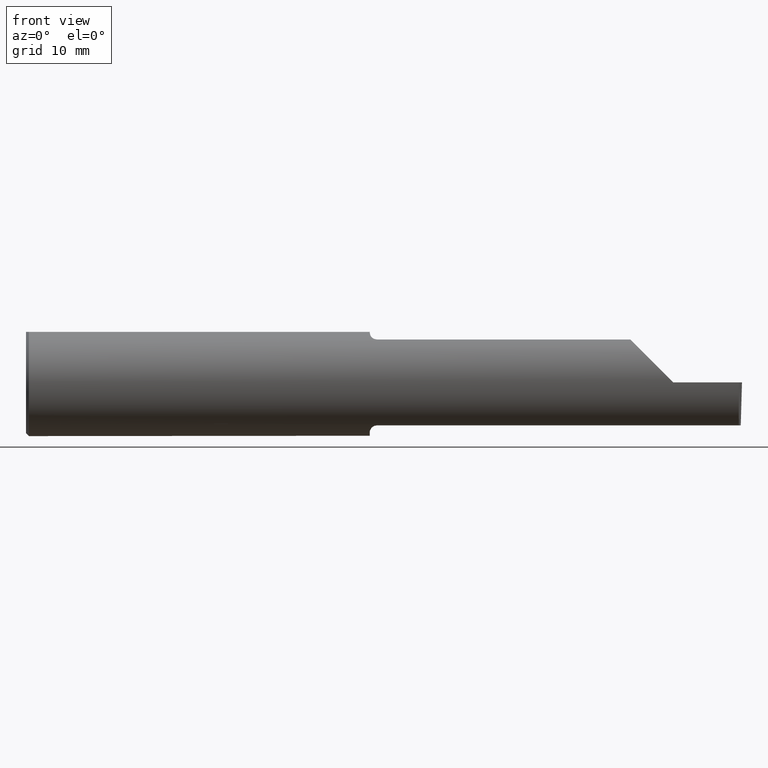
[diagram: clean part render]
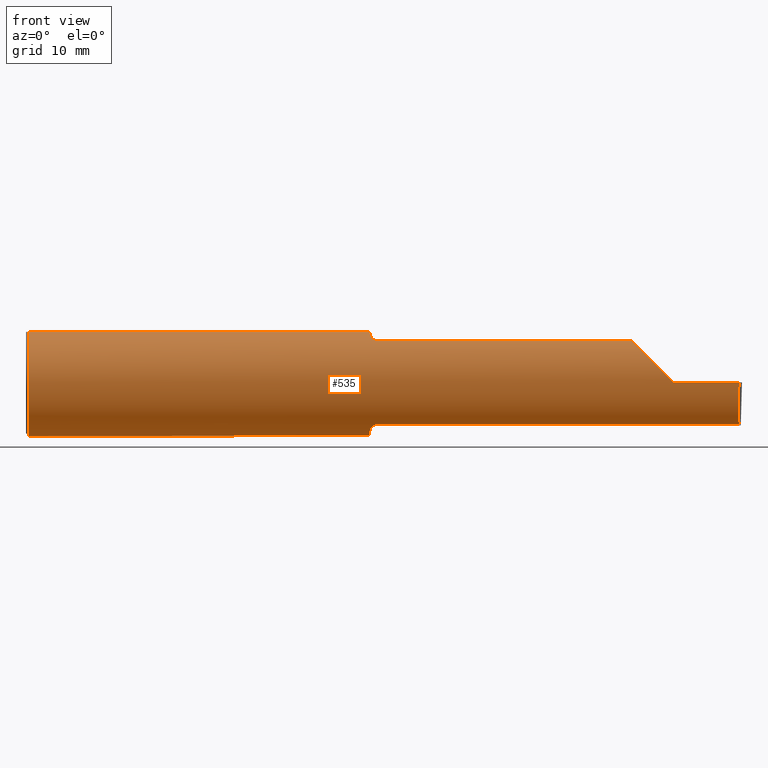
[diagram: same view with one face highlighted and labeled with its STEP entity id]
A machine part, front view. The second image highlights one B-rep face of the part: STEP entity #535.
In plain terms, the highlighted cylindrical surface (partial cylindrical patch) has radius 4.7587 mm, axis along (-1, -0, -0).
Its self-contained STEP definition (entity closure, byte-faithful):
#2 = CARTESIAN_POINT ( 'NONE',  ( 1.202945243422983479, -0.09312071749437436652, 0.1626553472577906001 ) ) ;
#5 = CARTESIAN_POINT ( 'NONE',  ( 1.200353553376444671, -0.07868116735658677030, 0.1701139256562800572 ) ) ;
#8 = CIRCLE ( 'NONE', #465, 0.1873499999999999888 ) ;
#13 = LINE ( 'NONE', #230, #568 ) ;
#14 = CARTESIAN_POINT ( 'NONE',  ( 1.199999999999999956, -0.06851976604679066440, 0.1743704796142198643 ) ) ;
#15 = EDGE_LOOP ( 'NONE', ( #556, #464, #670, #225, #193, #531, #587, #43, #585, #360, #419, #292, #318 ) ) ;
#30 = CARTESIAN_POINT ( 'NONE',  ( 0.01000000000000013205, -0.06325108694718235836, 0.1763499999999999235 ) ) ;
#33 = VERTEX_POINT ( 'NONE', #708 ) ;
#39 =( BOUNDED_CURVE ( )  B_SPLINE_CURVE ( 3, ( #683, #462, #347, #616 ),
 .UNSPECIFIED., .F., .F. ) 
 B_SPLINE_CURVE_WITH_KNOTS ( ( 4, 4 ),
 ( 4.712388980384688786, 5.606916381293134855 ),
 .UNSPECIFIED. ) 
 CURVE ( )  GEOMETRIC_REPRESENTATION_ITEM ( )  RATIONAL_B_SPLINE_CURVE ( ( 1.000000000000000000, 0.9344226172588805390, 0.9344226172588805390, 1.000000000000000000 ) ) 
 REPRESENTATION_ITEM ( '' )  );
#40 = VERTEX_POINT ( 'NONE', #216 ) ;
#43 = ORIENTED_EDGE ( 'NONE', *, *, #150, .F. ) ;
#54 = CARTESIAN_POINT ( 'NONE',  ( 1.219511795768554396, -0.1163687266324236608, -0.1468371510166787408 ) ) ;
#58 =( BOUNDED_CURVE ( )  B_SPLINE_CURVE ( 3, ( #106, #310, #370, #210 ),
 .UNSPECIFIED., .F., .T. ) 
 B_SPLINE_CURVE_WITH_KNOTS ( ( 4, 4 ),
 ( 5.852427379562172405, 6.746954780470620250 ),
 .UNSPECIFIED. ) 
 CURVE ( )  GEOMETRIC_REPRESENTATION_ITEM ( )  RATIONAL_B_SPLINE_CURVE ( ( 1.000000000000000000, 0.9344226172588802060, 0.9344226172588802060, 1.000000000000000000 ) ) 
 REPRESENTATION_ITEM ( '' )  );
#59 = VERTEX_POINT ( 'NONE', #76 ) ;
#63 = CARTESIAN_POINT ( 'NONE',  ( 2.489235021721937002, -0.1873499999999999888, 0.000000000000000000 ) ) ;
#64 = DIRECTION ( 'NONE',  ( 0.000000000000000000, 1.000000000000000000, 0.000000000000000000 ) ) ;
#67 = AXIS2_PLACEMENT_3D ( 'NONE', #169, #342, #165 ) ;
#72 = CARTESIAN_POINT ( 'NONE',  ( 1.199999999999999956, 0.000000000000000000, 0.000000000000000000 ) ) ;
#74 = EDGE_CURVE ( 'NONE', #421, #59, #39, .T. ) ;
#76 = CARTESIAN_POINT ( 'NONE',  ( 2.113883229301068312, -0.1172600179964009698, 0.1461167706989301152 ) ) ;
#86 = DIRECTION ( 'NONE',  ( 1.000000000000000000, 0.000000000000000000, 0.000000000000000000 ) ) ;
#96 = CARTESIAN_POINT ( 'NONE',  ( 1.202960551809340028, -0.09317341542745755101, -0.1626248379125195820 ) ) ;
#98 = CARTESIAN_POINT ( 'NONE',  ( 1.201843912362378308, -0.08846956905169099661, -0.1652353808078971809 ) ) ;
#103 = CARTESIAN_POINT ( 'NONE',  ( 1.199999999999999956, -0.07368234487347197215, -0.1723418180300747837 ) ) ;
#106 = CARTESIAN_POINT ( 'NONE',  ( 2.489130585478359858, -0.1172600179964006645, -0.1461167706989303094 ) ) ;
#114 = CARTESIAN_POINT ( 'NONE',  ( 0.01000000000000013205, 0.06325108694718235836, 0.1763499999999999235 ) ) ;
#121 = DIRECTION ( 'NONE',  ( -1.000000000000000000, -0.000000000000000000, -0.000000000000000000 ) ) ;
#138 = CARTESIAN_POINT ( 'NONE',  ( 1.199999999999999956, -0.06325108694718287183, 0.1763499999999999235 ) ) ;
#150 = EDGE_CURVE ( 'NONE', #416, #158, #677, .T. ) ;
#158 = VERTEX_POINT ( 'NONE', #138 ) ;
#159 = CARTESIAN_POINT ( 'NONE',  ( 1.213203859946834218, -0.1120371980050639676, -0.1501764597936558476 ) ) ;
#165 = DIRECTION ( 'NONE',  ( 0.000000000000000000, 0.000000000000000000, -1.000000000000000000 ) ) ;
#169 = CARTESIAN_POINT ( 'NONE',  ( 0.01000000000000013205, 0.000000000000000000, 0.000000000000000000 ) ) ;
#172 = DIRECTION ( 'NONE',  ( 1.000000000000000000, 7.267260269538567824E-17, 0.000000000000000000 ) ) ;
#187 = CARTESIAN_POINT ( 'NONE',  ( 0.000000000000000000, -0.06325108694718235836, 0.1763499999999999235 ) ) ;
#190 = CARTESIAN_POINT ( 'NONE',  ( 1.225000000000000089, -0.1172600179964008033, 0.1461167706989302262 ) ) ;
#193 = ORIENTED_EDGE ( 'NONE', *, *, #500, .F. ) ;
#200 = EDGE_CURVE ( 'NONE', #416, #623, #436, .T. ) ;
#203 = CARTESIAN_POINT ( 'NONE',  ( 1.208439486659307116, -0.1064616213911159653, -0.1542305641651500192 ) ) ;
#206 = AXIS2_PLACEMENT_3D ( 'NONE', #433, #288, #64 ) ;
#208 = DIRECTION ( 'NONE',  ( 0.000000000000000000, 0.000000000000000000, 1.000000000000000000 ) ) ;
#210 = CARTESIAN_POINT ( 'NONE',  ( 2.489235021721937002, -0.1873499999999999888, 0.000000000000000000 ) ) ;
#216 = CARTESIAN_POINT ( 'NONE',  ( 1.199999999999999956, -0.06851976604679066440, 0.1743704796142198643 ) ) ;
#217 = CARTESIAN_POINT ( 'NONE',  ( 1.208475602106622082, -0.1064978748893407601, 0.1542035505680382779 ) ) ;
#225 = ORIENTED_EDGE ( 'NONE', *, *, #74, .T. ) ;
#226 = EDGE_CURVE ( 'NONE', #158, #40, #8, .T. ) ;
#227 = CARTESIAN_POINT ( 'NONE',  ( 1.213163223656403167, -0.1119926267047278573, 0.1502091925606061362 ) ) ;
#230 = CARTESIAN_POINT ( 'NONE',  ( 0.000000000000000000, 0.06325108694718235836, 0.1763499999999999235 ) ) ;
#256 = LINE ( 'NONE', #635, #407 ) ;
#266 = EDGE_CURVE ( 'NONE', #623, #325, #329, .T. ) ;
#267 = FACE_OUTER_BOUND ( 'NONE', #15, .T. ) ;
#272 = EDGE_CURVE ( 'NONE', #430, #678, #293, .T. ) ;
#277 = B_SPLINE_CURVE_WITH_KNOTS ( 'NONE', 3,
 ( #14, #562, #5, #399, #2, #390, #217, #227, #387, #381, #554, #502 ),
 .UNSPECIFIED., .F., .F.,
 ( 4, 2, 2, 2, 2, 4 ),
 ( 4.423516731080811751E-05, 0.0004615475116586740113, 0.0008788598560065399119, 0.001296172200354405758, 0.001504828372528336025, 0.001713484544702266509 ),
 .UNSPECIFIED. ) ;
#285 = CARTESIAN_POINT ( 'NONE',  ( 0.01000000000000013205, 0.000000000000000000, 0.000000000000000000 ) ) ;
#288 = DIRECTION ( 'NONE',  ( 1.000000000000000000, 7.267260269538567824E-17, 0.000000000000000000 ) ) ;
#292 = ORIENTED_EDGE ( 'NONE', *, *, #272, .F. ) ;
#293 = CIRCLE ( 'NONE', #206, 0.1873499999999999888 ) ;
#295 = CARTESIAN_POINT ( 'NONE',  ( 1.199999999999999956, -0.06851976604679066440, -0.1743704796142198643 ) ) ;
#304 = LINE ( 'NONE', #411, #621 ) ;
#310 = CARTESIAN_POINT ( 'NONE',  ( 2.488188068920404561, -0.1623470442677541203, -0.1099340280425338823 ) ) ;
#312 = LINE ( 'NONE', #539, #522 ) ;
#315 = CARTESIAN_POINT ( 'NONE',  ( 0.000000000000000000, 0.000000000000000000, 0.000000000000000000 ) ) ;
#318 = ORIENTED_EDGE ( 'NONE', *, *, #524, .F. ) ;
#322 = EDGE_CURVE ( 'NONE', #40, #351, #277, .T. ) ;
#325 = VERTEX_POINT ( 'NONE', #114 ) ;
#329 = CIRCLE ( 'NONE', #67, 0.1873499999999999888 ) ;
#338 = CARTESIAN_POINT ( 'NONE',  ( 1.199999999999999956, 0.06325108694718235836, 0.1763499999999999235 ) ) ;
#342 = DIRECTION ( 'NONE',  ( 1.000000000000000000, 0.000000000000000000, 0.000000000000000000 ) ) ;
#347 = CARTESIAN_POINT ( 'NONE',  ( 2.150065971957465294, -0.1623470442677543146, 0.1099340280425335076 ) ) ;
#351 = VERTEX_POINT ( 'NONE', #190 ) ;
#360 = ORIENTED_EDGE ( 'NONE', *, *, #266, .T. ) ;
#363 = B_SPLINE_CURVE_WITH_KNOTS ( 'NONE', 3,
 ( #692, #706, #54, #532, #159, #203, #483, #96, #98, #376, #103, #431 ),
 .UNSPECIFIED., .F., .F.,
 ( 4, 2, 2, 2, 2, 4 ),
 ( 1.967976973692733563E-07, 0.0002120314145722265134, 0.0004238660314470837171, 0.0008475352651968004556, 0.001271204498946517302, 0.001694873732696233933 ),
 .UNSPECIFIED. ) ;
#366 = DIRECTION ( 'NONE',  ( -1.000000000000000000, -7.267260269538567824E-17, -0.000000000000000000 ) ) ;
#370 = CARTESIAN_POINT ( 'NONE',  ( 2.488225324098681579, -0.1873500000000000443, -0.05781030015605120864 ) ) ;
#371 = AXIS2_PLACEMENT_3D ( 'NONE', #315, #485, #208 ) ;
#376 = CARTESIAN_POINT ( 'NONE',  ( 1.200358271039144054, -0.07873626113568082951, -0.1700887912276896063 ) ) ;
#381 = CARTESIAN_POINT ( 'NONE',  ( 1.219481469043492528, -0.1163560528186167731, 0.1468472430636321713 ) ) ;
#387 = CARTESIAN_POINT ( 'NONE',  ( 1.215004157323697154, -0.1137044537483317824, 0.1489098419202426471 ) ) ;
#390 = CARTESIAN_POINT ( 'NONE',  ( 1.206287624083520749, -0.1021858045380146796, 0.1571187174372874751 ) ) ;
#391 = VERTEX_POINT ( 'NONE', #571 ) ;
#399 = CARTESIAN_POINT ( 'NONE',  ( 1.201829077486400443, -0.08839624499054658802, 0.1652742498708036911 ) ) ;
#407 = VECTOR ( 'NONE', #366, 39.37007874015748143 ) ;
#410 = EDGE_CURVE ( 'NONE', #633, #421, #304, .T. ) ;
#411 = CARTESIAN_POINT ( 'NONE',  ( 3.749399456654646757E-32, -0.1873499999999999610, 3.061616997868383634E-16 ) ) ;
#415 = CARTESIAN_POINT ( 'NONE',  ( 2.260000000000000231, -0.1873499999999999888, 2.939152317953647352E-17 ) ) ;
#416 = VERTEX_POINT ( 'NONE', #30 ) ;
#419 = ORIENTED_EDGE ( 'NONE', *, *, #626, .F. ) ;
#421 = VERTEX_POINT ( 'NONE', #415 ) ;
#430 = VERTEX_POINT ( 'NONE', #295 ) ;
#431 = CARTESIAN_POINT ( 'NONE',  ( 1.199999999999999956, -0.06851976604679066440, -0.1743704796142198643 ) ) ;
#433 = CARTESIAN_POINT ( 'NONE',  ( 1.199999999999999956, 0.000000000000000000, 0.000000000000000000 ) ) ;
#436 = CIRCLE ( 'NONE', #620, 0.1873499999999999888 ) ;
#445 = DIRECTION ( 'NONE',  ( 1.000000000000000000, 0.000000000000000000, 0.000000000000000000 ) ) ;
#462 = CARTESIAN_POINT ( 'NONE',  ( 2.202189699843948745, -0.1873500000000000165, 0.05781030015605089639 ) ) ;
#464 = ORIENTED_EDGE ( 'NONE', *, *, #482, .T. ) ;
#465 = AXIS2_PLACEMENT_3D ( 'NONE', #72, #172, #650 ) ;
#482 = EDGE_CURVE ( 'NONE', #33, #633, #58, .T. ) ;
#483 = CARTESIAN_POINT ( 'NONE',  ( 1.206304331342287650, -0.1022198306720692312, -0.1570962426853817206 ) ) ;
#485 = DIRECTION ( 'NONE',  ( -1.000000000000000000, -0.000000000000000000, -0.000000000000000000 ) ) ;
#500 = EDGE_CURVE ( 'NONE', #351, #59, #312, .T. ) ;
#502 = CARTESIAN_POINT ( 'NONE',  ( 1.225000000000000089, -0.1172600179964008033, 0.1461167706989302262 ) ) ;
#522 = VECTOR ( 'NONE', #645, 39.37007874015748143 ) ;
#524 = EDGE_CURVE ( 'NONE', #391, #430, #363, .T. ) ;
#526 = DIRECTION ( 'NONE',  ( -1.000000000000000000, -0.000000000000000000, -0.000000000000000000 ) ) ;
#529 = CYLINDRICAL_SURFACE ( 'NONE', #371, 0.1873499999999999888 ) ;
#531 = ORIENTED_EDGE ( 'NONE', *, *, #322, .F. ) ;
#532 = CARTESIAN_POINT ( 'NONE',  ( 1.215028532764138136, -0.1137241120808237110, -0.1488947809299402680 ) ) ;
#535 = ADVANCED_FACE ( 'NONE', ( #267 ), #529, .T. ) ;
#539 = CARTESIAN_POINT ( 'NONE',  ( 1.799861995000000103, -0.1172600179964007061, 0.1461167706989303094 ) ) ;
#546 = CARTESIAN_POINT ( 'NONE',  ( 0.01000000000000013205, 0.000000000000000000, -0.1873499999999999888 ) ) ;
#554 = CARTESIAN_POINT ( 'NONE',  ( 1.222161949849308149, -0.1172600179964062850, 0.1461167706989258963 ) ) ;
#556 = ORIENTED_EDGE ( 'NONE', *, *, #557, .F. ) ;
#557 = EDGE_CURVE ( 'NONE', #33, #391, #256, .T. ) ;
#562 = CARTESIAN_POINT ( 'NONE',  ( 1.199999999999999734, -0.07367581953296706287, 0.1723443821957854893 ) ) ;
#567 = VECTOR ( 'NONE', #86, 39.37007874015748143 ) ;
#568 = VECTOR ( 'NONE', #121, 39.37007874015748143 ) ;
#571 = CARTESIAN_POINT ( 'NONE',  ( 1.225000000000000089, -0.1172600179964007755, -0.1461167706989302262 ) ) ;
#585 = ORIENTED_EDGE ( 'NONE', *, *, #200, .T. ) ;
#587 = ORIENTED_EDGE ( 'NONE', *, *, #226, .F. ) ;
#616 = CARTESIAN_POINT ( 'NONE',  ( 2.113883229301068312, -0.1172600179964009698, 0.1461167706989301152 ) ) ;
#620 = AXIS2_PLACEMENT_3D ( 'NONE', #285, #445, #659 ) ;
#621 = VECTOR ( 'NONE', #526, 39.37007874015748143 ) ;
#623 = VERTEX_POINT ( 'NONE', #546 ) ;
#626 = EDGE_CURVE ( 'NONE', #678, #325, #13, .T. ) ;
#633 = VERTEX_POINT ( 'NONE', #63 ) ;
#635 = CARTESIAN_POINT ( 'NONE',  ( 1.799861995000000103, -0.1172600179964007061, -0.1461167706989303094 ) ) ;
#645 = DIRECTION ( 'NONE',  ( 1.000000000000000000, 7.267260269538567824E-17, 0.000000000000000000 ) ) ;
#650 = DIRECTION ( 'NONE',  ( 0.000000000000000000, 1.000000000000000000, 0.000000000000000000 ) ) ;
#659 = DIRECTION ( 'NONE',  ( 0.000000000000000000, 0.000000000000000000, -1.000000000000000000 ) ) ;
#670 = ORIENTED_EDGE ( 'NONE', *, *, #410, .T. ) ;
#677 = LINE ( 'NONE', #187, #567 ) ;
#678 = VERTEX_POINT ( 'NONE', #338 ) ;
#683 = CARTESIAN_POINT ( 'NONE',  ( 2.260000000000000231, -0.1873499999999999888, 2.939152317953647352E-17 ) ) ;
#692 = CARTESIAN_POINT ( 'NONE',  ( 1.225000000000000089, -0.1172600179964007755, -0.1461167706989302262 ) ) ;
#706 = CARTESIAN_POINT ( 'NONE',  ( 1.222174967710399462, -0.1172600179964008449, -0.1461167706989301984 ) ) ;
#708 = CARTESIAN_POINT ( 'NONE',  ( 2.489130585478359858, -0.1172600179964006645, -0.1461167706989303094 ) ) ;